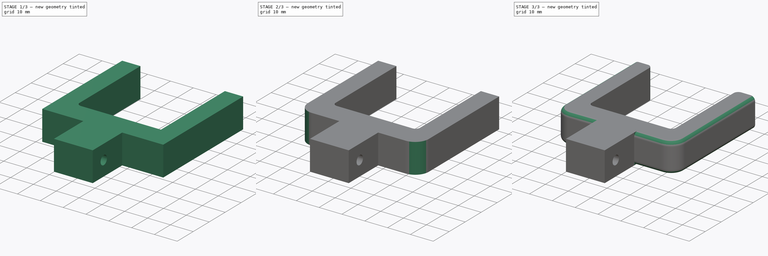
[diagram: build sequence overview — one tinted view per stage of 3, left to right]
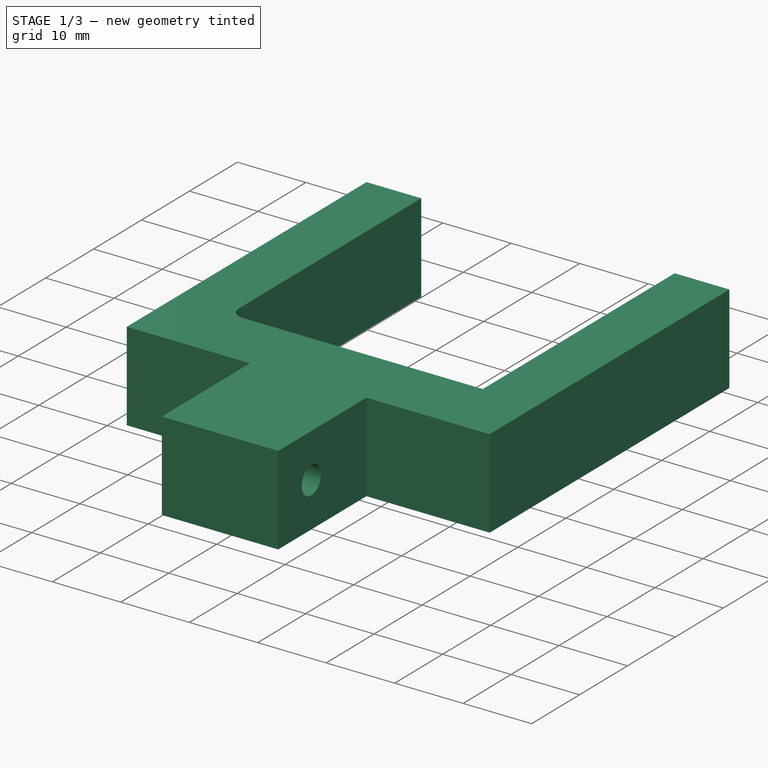
[diagram: stage 1 of 3 — iso view after this stage's code; geometry added in this stage tinted green]
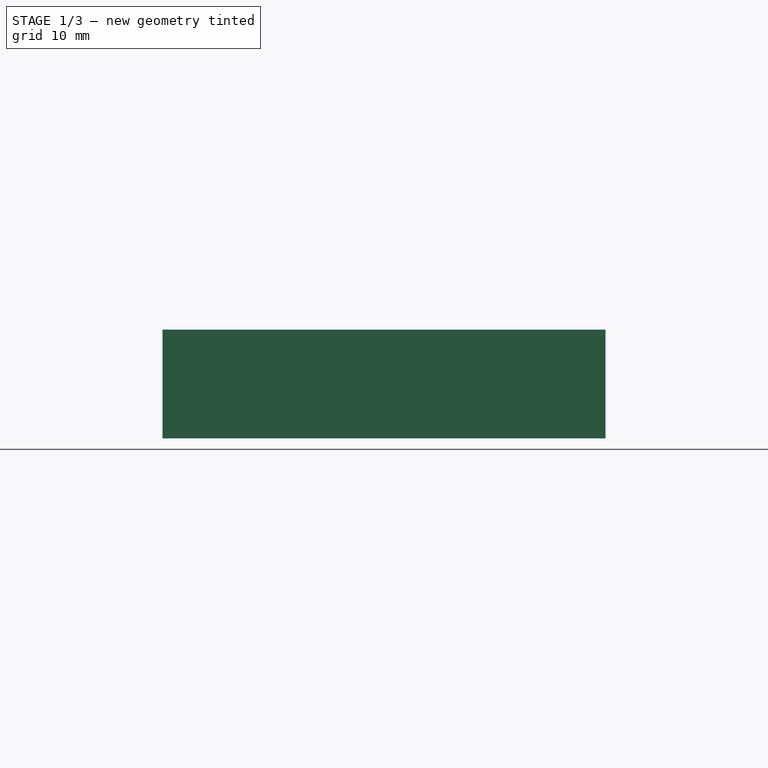
[diagram: stage 1 of 3 — front view after this stage's code; geometry added in this stage tinted green]
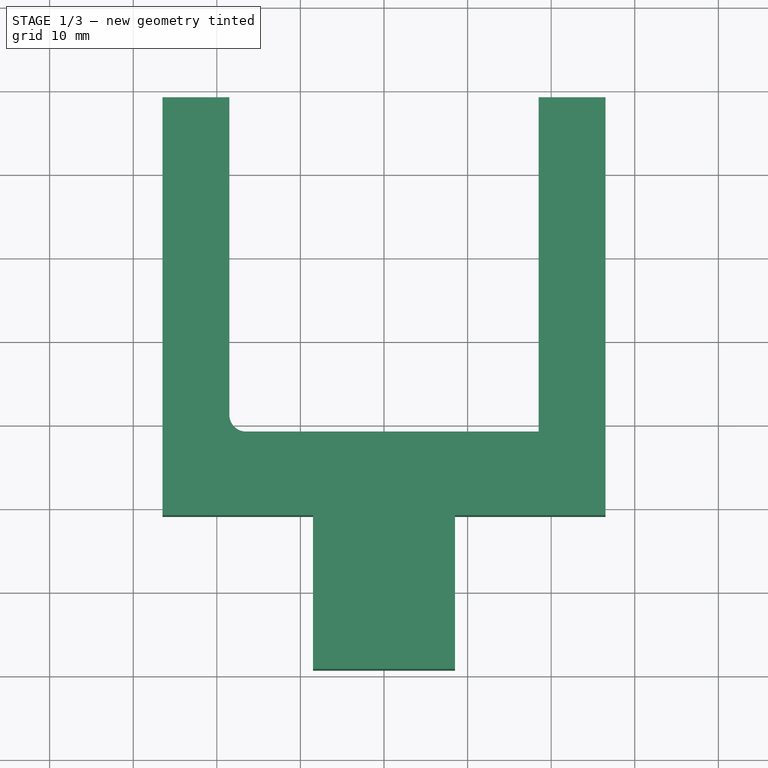
[diagram: stage 1 of 3 — top view after this stage's code; geometry added in this stage tinted green]
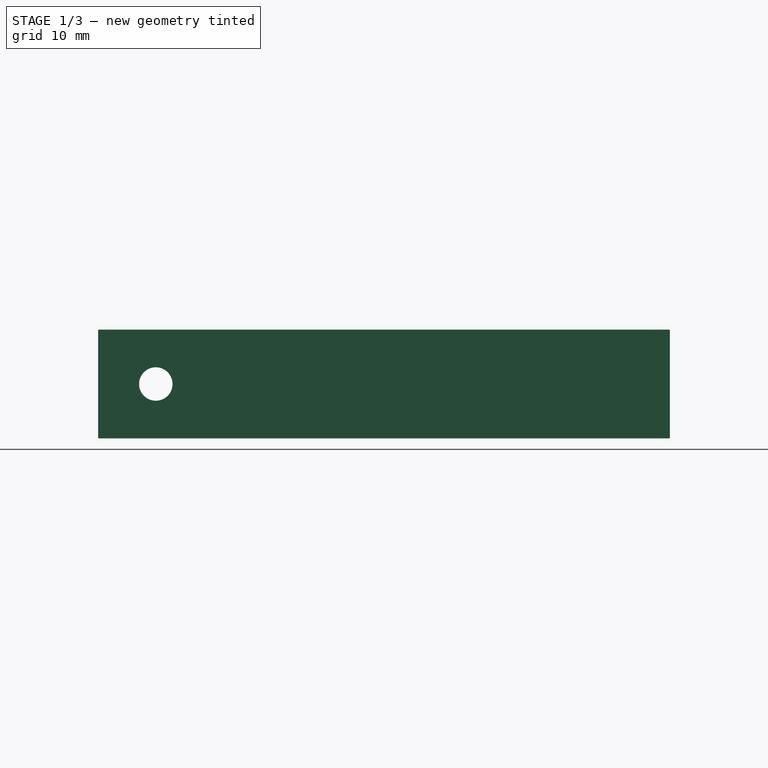
[diagram: stage 1 of 3 — right view after this stage's code; geometry added in this stage tinted green]
FCSTD DOCUMENT  (FreeCAD 0.16R6700 (Git))
Label: Filement Holder
License: FreeArt
LicenseURL: http://artlibre.org/licence/lal
objects: PartDesign::Fillet×6, Sketcher::SketchObject×2, PartDesign::Pad×1, PartDesign::Pocket×1
note: 12 computed .brp shape members not serialized (recipe doc carries the construction recipe); baked Part::Feature solids carry a one-line shape summary decoded from their .brp

FEATURE [Sketcher::SketchObject] Sketch
  sketch-geometry (12):
    g0: LineSegment StartX=-8.5 StartY=9.10228 StartZ=0 EndX=-8.5 EndY=-9.29772 EndZ=0
    g1: LineSegment StartX=-8.5 StartY=-9.29772 StartZ=0 EndX=8.5 EndY=-9.29772 EndZ=0
    g2: LineSegment StartX=8.5 StartY=-9.29772 StartZ=0 EndX=8.5 EndY=9.10228 EndZ=0
    g3: LineSegment StartX=8.5 StartY=9.10228 StartZ=0 EndX=26.4988 EndY=9.10228 EndZ=0
    g4: LineSegment StartX=26.4988 StartY=9.10228 StartZ=0 EndX=26.4988 EndY=59.1023 EndZ=0
    g5: LineSegment StartX=26.4988 StartY=59.1023 StartZ=0 EndX=18.4988 EndY=59.1023 EndZ=0
    g6: LineSegment StartX=18.4988 StartY=59.1023 StartZ=0 EndX=18.4988 EndY=19.1023 EndZ=0
    g7: LineSegment StartX=18.4988 StartY=19.1023 StartZ=0 EndX=-18.4988 EndY=19.1023 EndZ=0
    g8: LineSegment StartX=-18.4988 StartY=19.1023 StartZ=0 EndX=-18.4988 EndY=59.1023 EndZ=0
    g9: LineSegment StartX=-18.4988 StartY=59.1023 StartZ=0 EndX=-26.4988 EndY=59.1023 EndZ=0
    g10: LineSegment StartX=-26.4988 StartY=59.1023 StartZ=0 EndX=-26.4988 EndY=9.10228 EndZ=0
    g11: LineSegment StartX=-26.4988 StartY=9.10228 StartZ=0 EndX=-8.5 EndY=9.10228 EndZ=0
  constraints (34):
    c: Vertical(g0)
    c: Coincident(g0,g1)
    c: Coincident(g1,g2)
    c: Vertical(g2)
    c: Coincident(g2,g3)
    c: Horizontal(g3)
    c: Coincident(g3,g4)
    c: Vertical(g4)
    c: Coincident(g4,g5)
    c: Horizontal(g5)
    c: Coincident(g5,g6)
    c: Vertical(g6)
    c: Coincident(g6,g7)
    c: Horizontal(g7)
    c: Coincident(g7,g8)
    c: Vertical(g8)
    c: Coincident(g8,g9)
    c: Horizontal(g9)
    c: Coincident(g9,g10)
    c: Vertical(g10)
    c: Coincident(g10,g11)
    c: Horizontal(g11)
    c: Equal(g0,g2)
    c: Equal(g10,g4)
    c: Equal(g8,g6)
    c: Equal(g11,g3)
    c: Symmetric(g0,g1,g-2)
    c: Coincident(g11,g0)
    c: Equal(g9,g5)
    c: DistanceX(g1,g1) = 17
    c: DistanceY(g0,g0) = 18.4
    c: DistanceY(g10,g10) = 50
    c: DistanceX(g9,g9) = 8
    c: DistanceY(g0,g7) = 10
FEATURE [PartDesign::Pad] Pad
  Length = 13
  Length2 = 100
  Midplane = true
  Sketch = -> Sketch
  Type = 0
FEATURE [Sketcher::SketchObject] Sketch001
  ExternalGeometry = -> [Pad]
  Placement = pos=(8.5,0,0) rot=(0.57735,0.57735,0.57735;2.0944rad)
  Support = -> Pad [Face3]
  sketch-geometry (1):
    g0: Circle CenterX=-2.39772 CenterY=0 CenterZ=0 NormalX=0 NormalY=0 NormalZ=1 Radius=2
  constraints (3):
    c: PointOnObject(g0,g-1)
    c: Radius(g0) = 2
    c: Distance(g0,g-3) = 11.5
FEATURE [PartDesign::Pocket] Pocket
  Length = 5
  Sketch = -> Sketch001
  Type = 1
FEATURE [PartDesign::Fillet] Fillet
  Base = -> Pocket [Edge38]
  Radius = 2
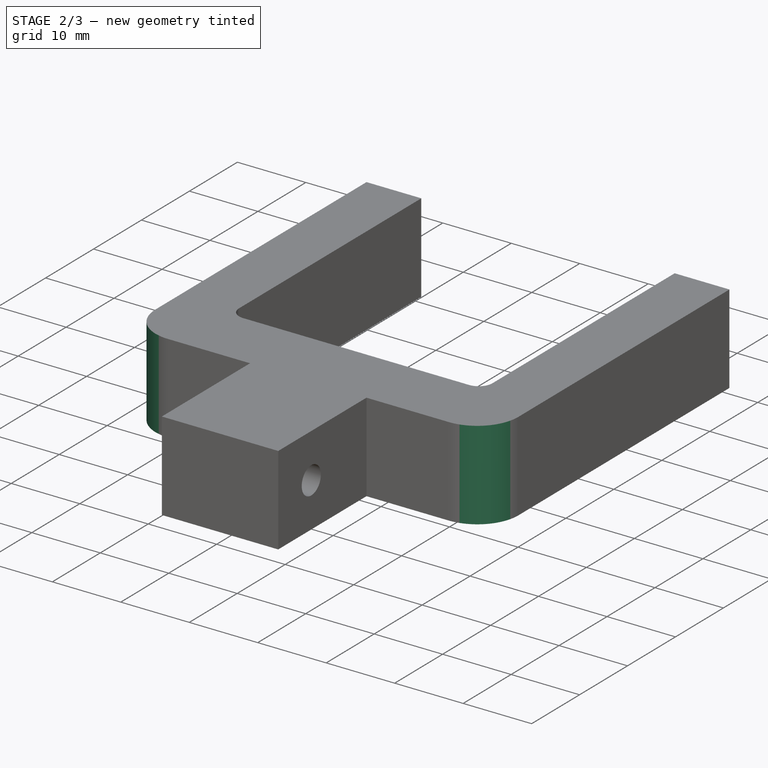
[diagram: stage 2 of 3 — iso view after this stage's code; geometry added in this stage tinted green]
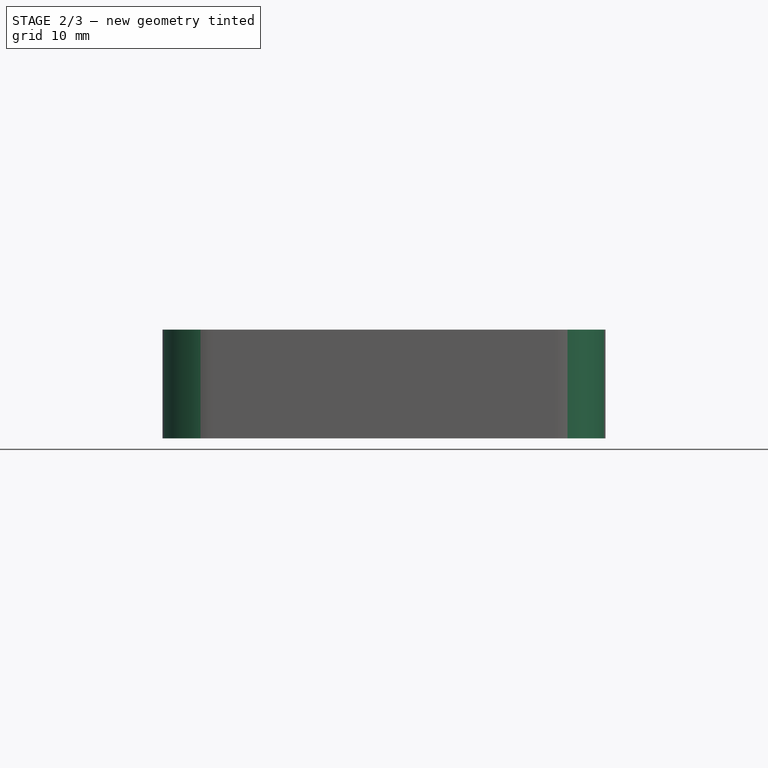
[diagram: stage 2 of 3 — front view after this stage's code; geometry added in this stage tinted green]
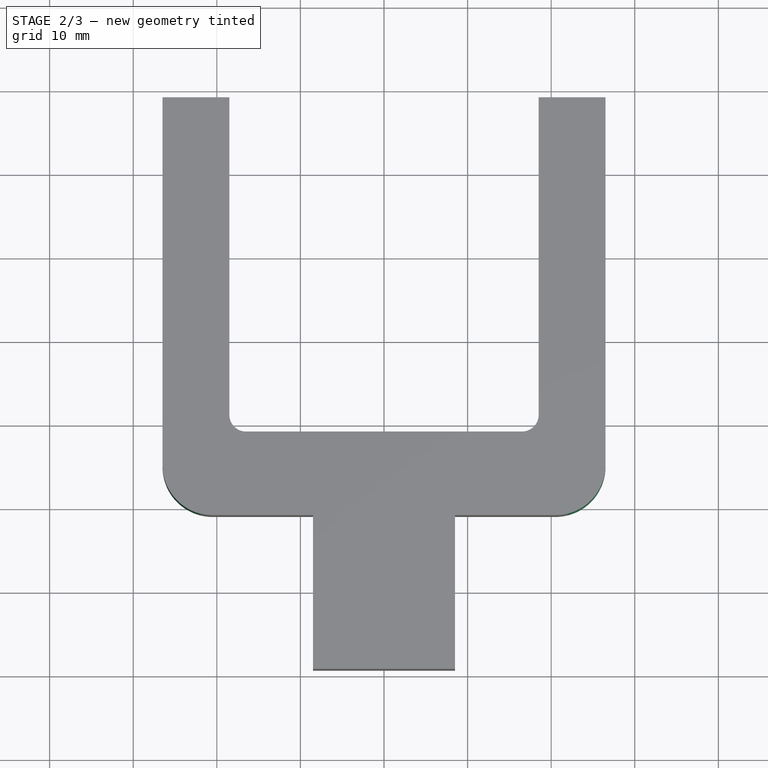
[diagram: stage 2 of 3 — top view after this stage's code; geometry added in this stage tinted green]
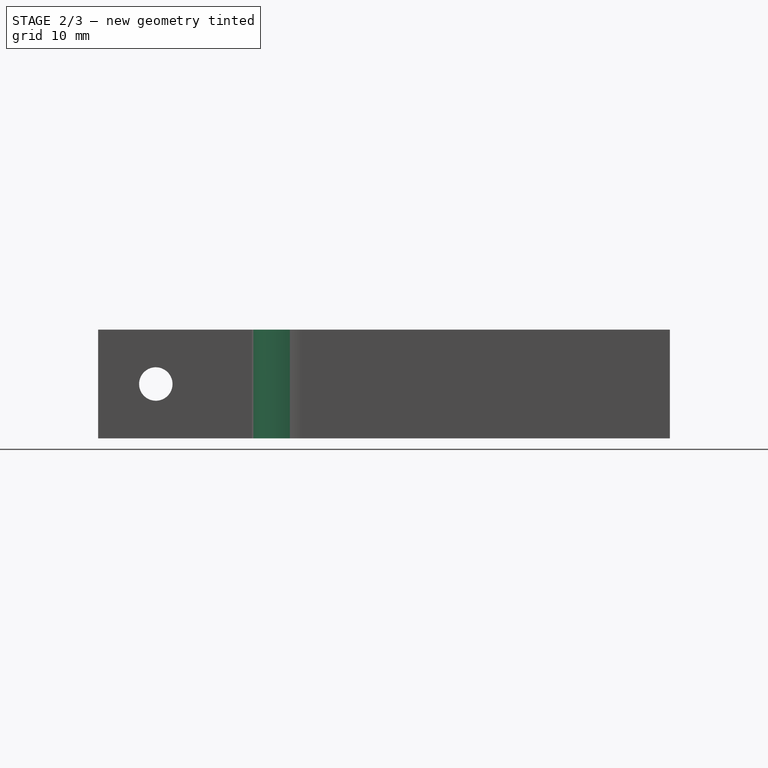
[diagram: stage 2 of 3 — right view after this stage's code; geometry added in this stage tinted green]
FEATURE [PartDesign::Fillet] Fillet001
  Base = -> Fillet [Edge15]
  Radius = 2
FEATURE [PartDesign::Fillet] Fillet002
  Base = -> Fillet001 [Edge30,Edge32]
  Radius = 6
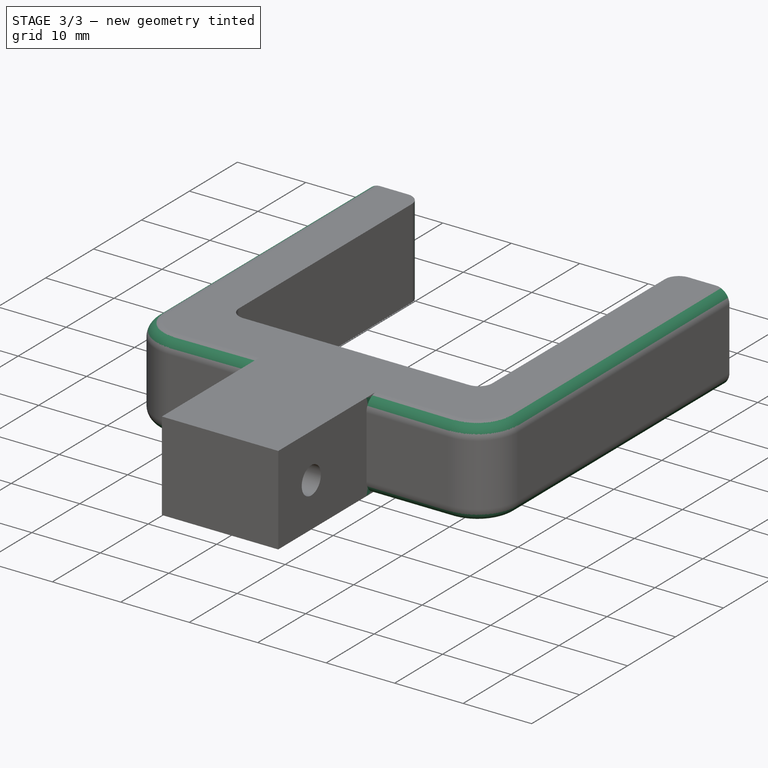
[diagram: stage 3 of 3 — iso view after this stage's code; geometry added in this stage tinted green]
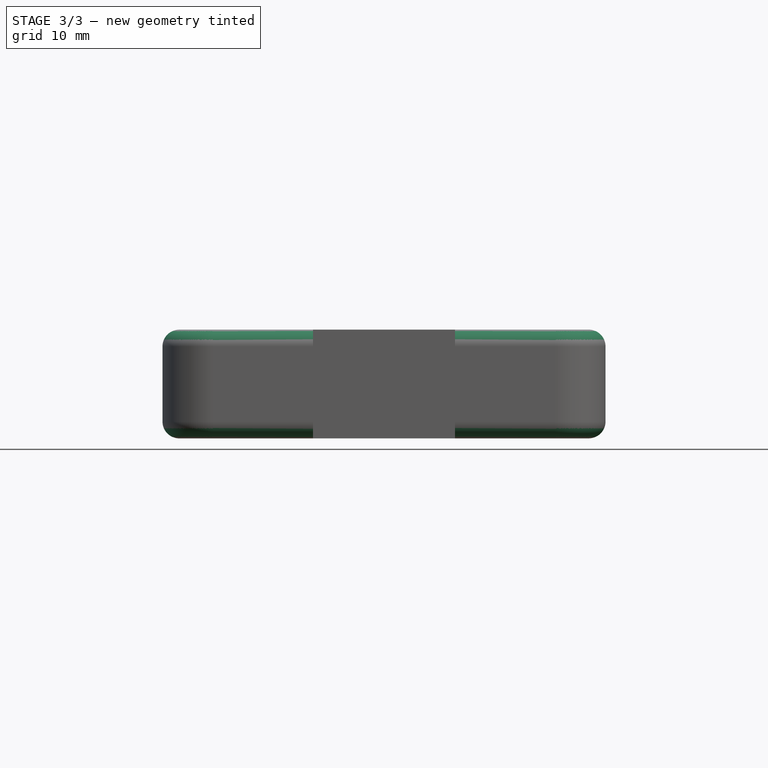
[diagram: stage 3 of 3 — front view after this stage's code; geometry added in this stage tinted green]
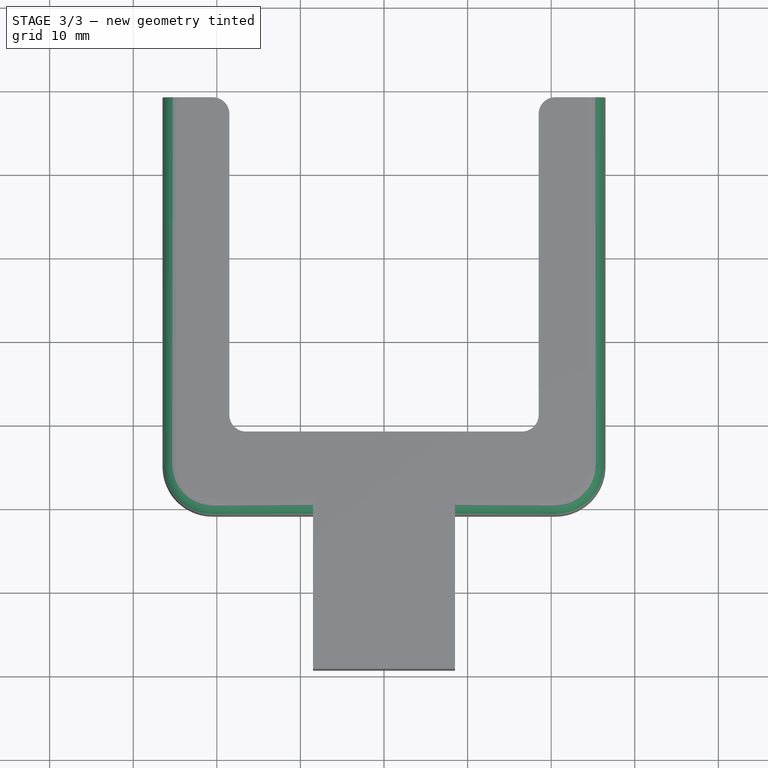
[diagram: stage 3 of 3 — top view after this stage's code; geometry added in this stage tinted green]
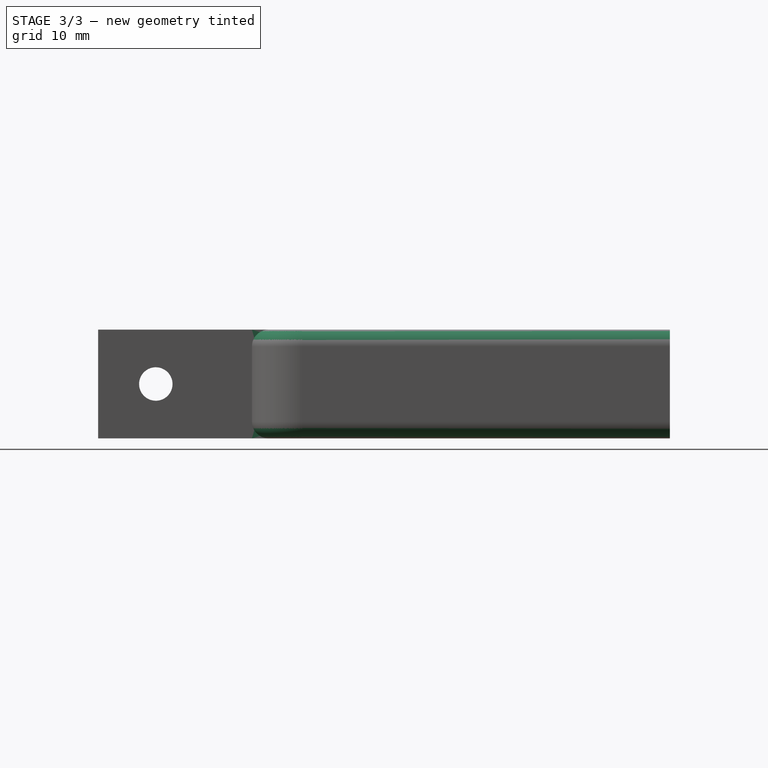
[diagram: stage 3 of 3 — right view after this stage's code; geometry added in this stage tinted green]
FEATURE [PartDesign::Fillet] Fillet003
  Base = -> Fillet002 [Edge47,Edge50,Edge43,Edge12,Edge14,Edge16]
  Radius = 2
FEATURE [PartDesign::Fillet] Fillet004
  Base = -> Fillet003 [Edge55,Edge56,Edge53,Edge15,Edge17,Edge16]
  Radius = 2
FEATURE [PartDesign::Fillet] Fillet005
  Base = -> Fillet004 [Edge23,Edge44]
  Radius = 2
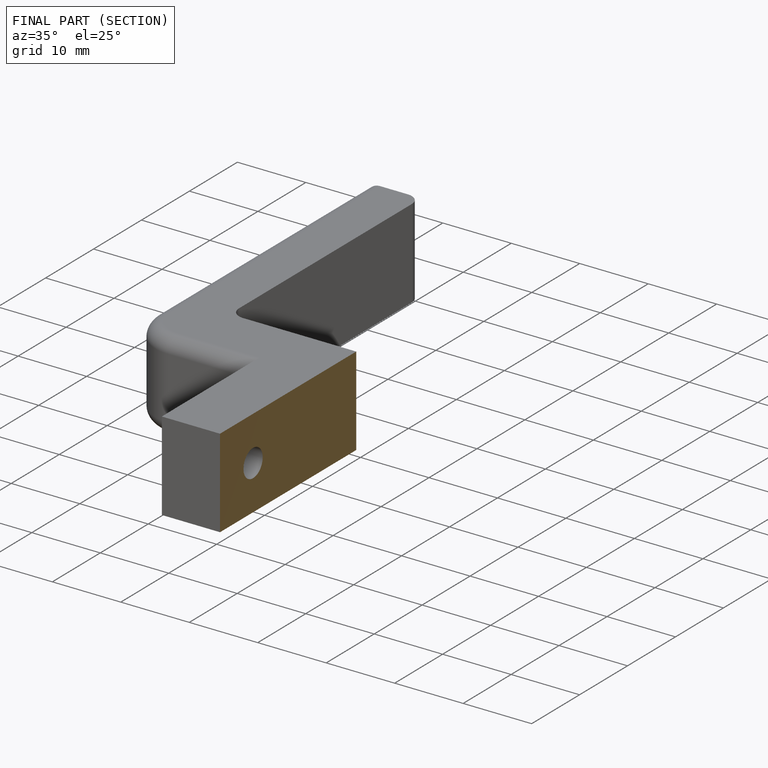
[diagram: finished part — half-section view (interior)]
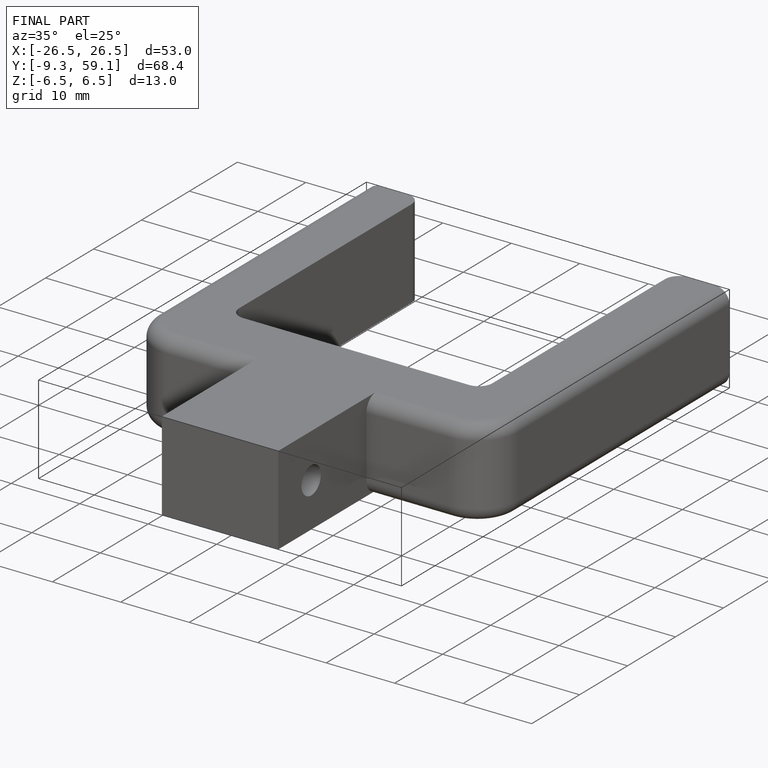
[diagram: finished part — iso view with bounding-box wireframe]
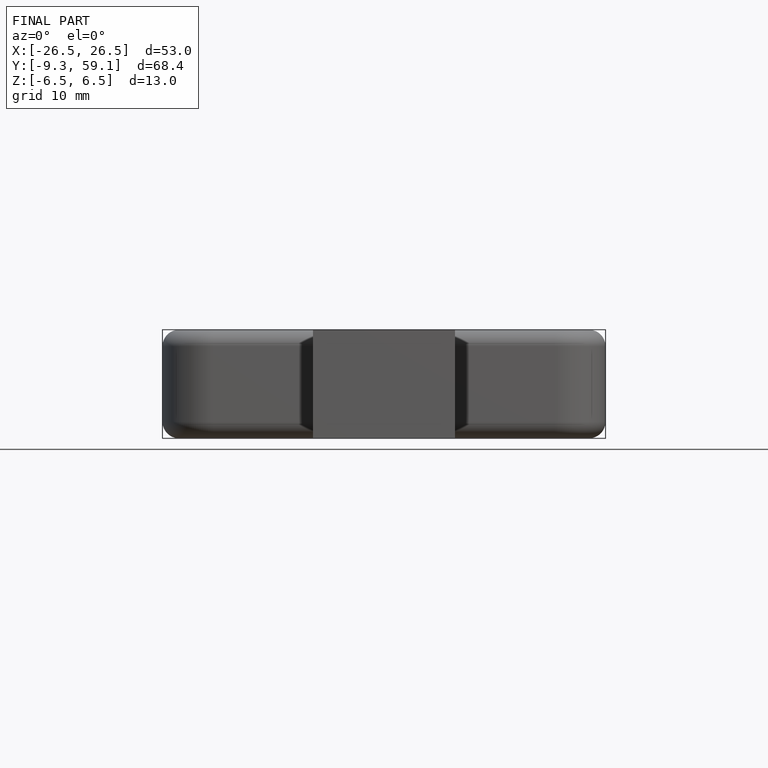
[diagram: finished part — front view with bounding-box wireframe]
